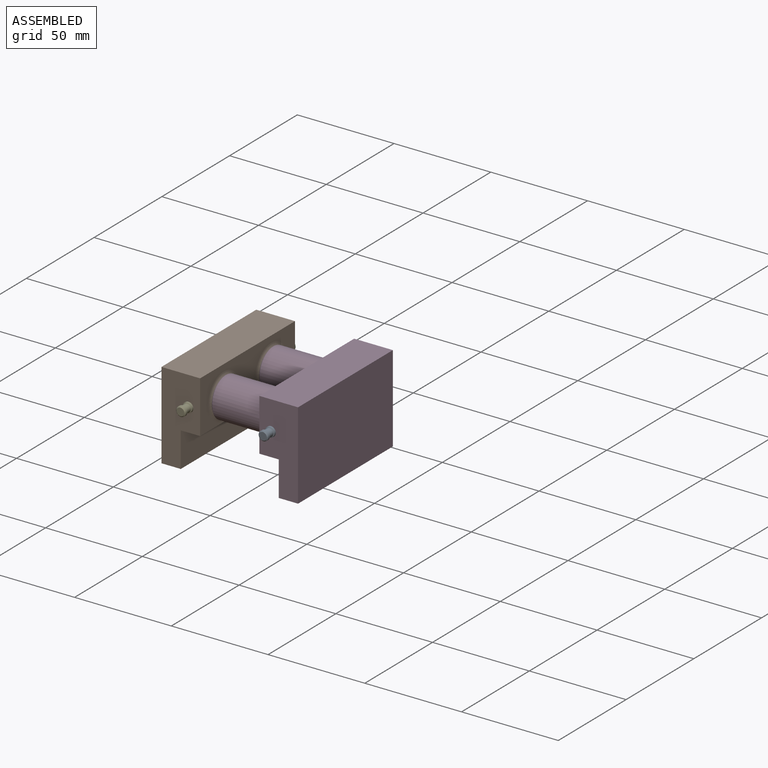
[diagram: assembled view]
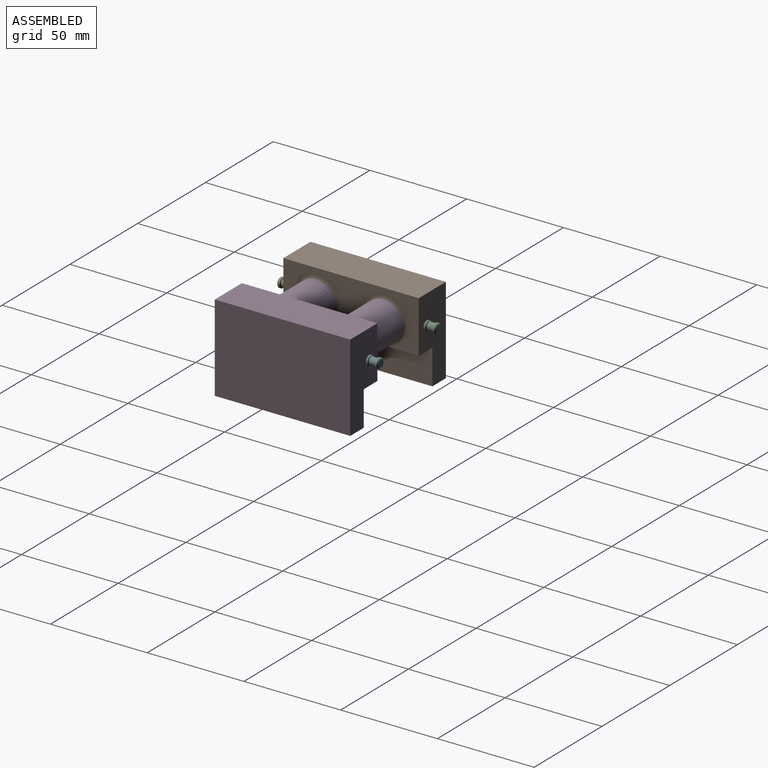
[diagram: assembled view, second angle]
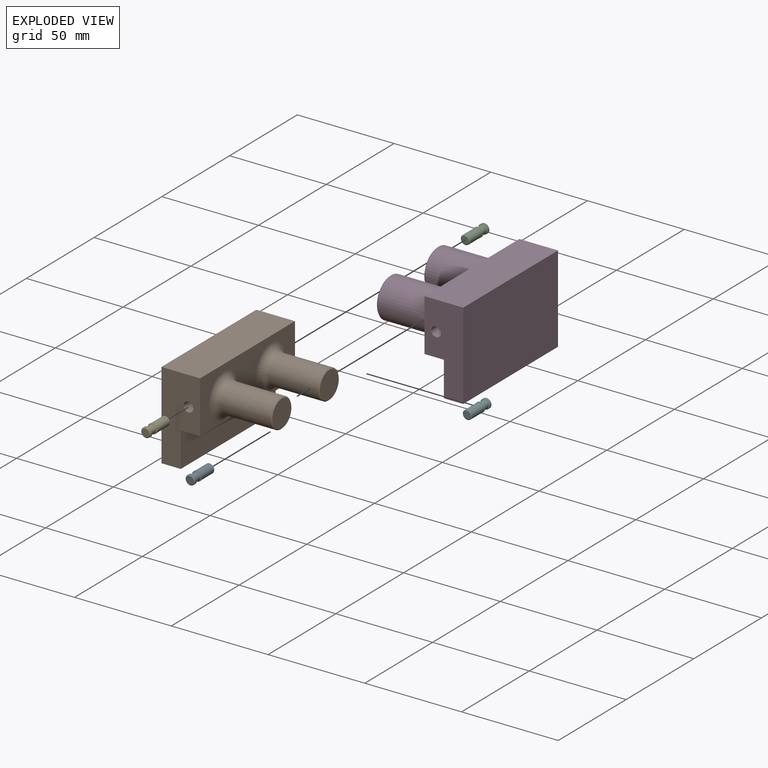
[diagram: exploded view]
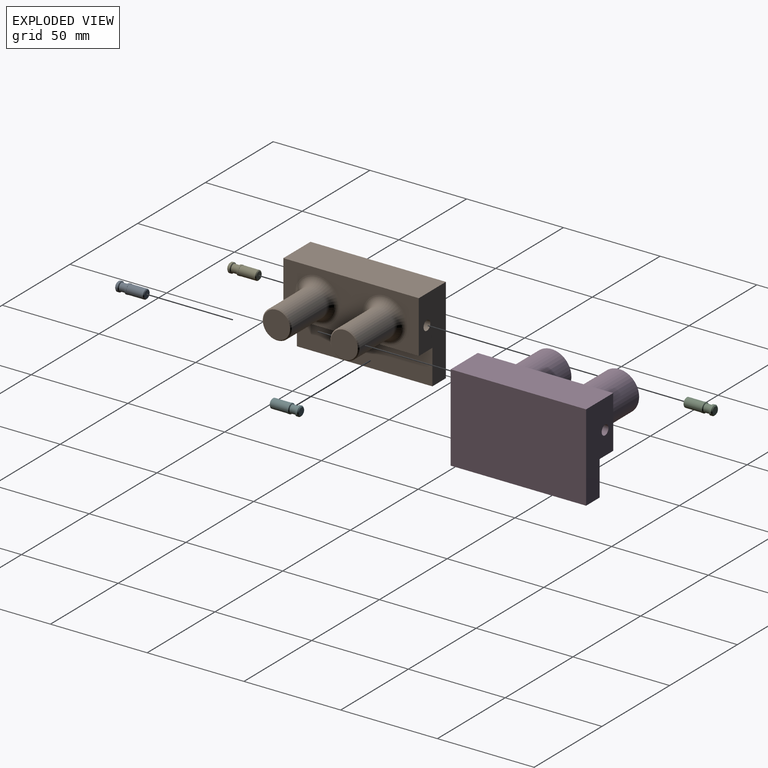
[diagram: exploded view, second angle]
ASSEMBLY  parts=6 mates=4
PART A: 11 faces, bbox 5x5x15 mm
  f0: cylinder r=2.5mm len=5mm, axis (0,0,-1), area 17.3mm2, adj f2,f5
  f1: plane 4x4mm, normal (0,0,-1), area 12.6mm2, adj f2
  f2: cone r=2.5mm half-angle=45deg, axis (0,0,1), area 10mm2, adj f0,f1
  f3: cone r=2.5mm half-angle=60deg, axis (0,0,1), area 8.2mm2, adj f4,f6
  f4: cylinder r=2mm len=4mm, axis (0,0,1), area 36.7mm2, adj f3,f5
  f5: cone r=2mm half-angle=60deg, axis (0,0,-1), area 8.2mm2, adj f0,f4
  f6: cylinder r=2.5mm len=5mm, axis (0,0,-1), area 14.1mm2, adj f3,f8
  f7: cylinder r=2.4mm len=8.6mm, axis (0,0,1), area 129.7mm2, adj f8,f10
  f8: plane 5x5mm, normal (0,0,1), area 1.5mm2, adj f6,f7
  f9: plane 4x4mm, normal (0,0,1), area 12.6mm2, adj f10
  f10: cone r=2mm half-angle=45deg, axis (0,0,-1), area 7.8mm2, adj f7,f9
PART B: 17 faces, bbox 45.5x70x50 mm
  f0: plane 70x10mm, normal (1,0,0), area 700mm2, adj f2,f4,f5,f9
  f1: plane 70x27mm, normal (0,0,1), area 1059mm2, adj f2,f3,f4,f8,f15,f16
  f2: plane 45x20mm, normal (0,1,0), area 700.4mm2, adj f0,f1,f3,f5,f8,f9,f14
  f3: plane 70x20mm, normal (-1,0,0), area 1400mm2, adj f1,f2,f4,f5
  f4: plane 45x20mm, normal (0,-1,0), area 700.4mm2, adj f0,f1,f3,f5,f8,f9,f14
  f5: plane 70x45mm, normal (0,0,-1), area 3150mm2, adj f0,f2,f3,f4
  f6: cylinder r=7.5mm len=25.5mm, axis (0,0,-1), area 1201.7mm2, adj f12,f16
  f7: cylinder r=7.5mm len=25.5mm, axis (0,0,-1), area 1201.7mm2, adj f13,f15
  f8: plane 70x10mm, normal (1,0,0), area 700mm2, adj f1,f2,f4,f9
  f9: plane 70x18mm, normal (0,0,1), area 1260mm2, adj f0,f2,f4,f8
  f10: plane 14x14mm, normal (0,0,1), area 153.9mm2, adj f12
  f11: plane 14x14mm, normal (0,0,1), area 153.9mm2, adj f13
  f12: cone r=7mm half-angle=45deg, axis (0,0,-1), area 32.2mm2, adj f6,f10
  f13: cone r=7mm half-angle=45deg, axis (0,0,-1), area 32.2mm2, adj f7,f11
  f14: cylinder r=2.5mm len=70mm, axis (0,-1,0), area 1099.6mm2, adj f2,f4
  f15: torus R=11.5mm, axis (0,0,1), area 353.5mm2, adj f1,f7
  f16: torus R=11.5mm, axis (0,0,1), area 353.5mm2, adj f1,f6
PART C: same geometry as A
PART D: 26 faces, bbox 48.8x72.3x50.3 mm
  f0: plane 70x10mm, normal (1,0,0), area 700mm2, adj f3,f4,f5,f9
  f1: plane 70x27mm, normal (0,0,1), area 661mm2, adj f2,f3,f4,f8,f22,f24
  f2: plane 70x20mm, normal (-1,0,0), area 1400mm2, adj f1,f3,f4,f5
  f3: plane 45x20mm, normal (0,-1,0), area 700.4mm2, adj f0,f1,f2,f5,f8,f9,f21
  f4: plane 45x20mm, normal (0,1,0), area 700.4mm2, adj f0,f1,f2,f5,f8,f9,f20
  f5: plane 70x45mm, normal (0,0,-1), area 3150mm2, adj f0,f2,f3,f4
  f6: cylinder r=10.25mm len=25.5mm, axis (0,0,-1), area 1642.3mm2, adj f16,f24,f25
  f7: cylinder r=10.25mm len=25.5mm, axis (0,0,-1), area 1642.3mm2, adj f14,f22,f23
  f8: plane 70.34x10.34mm, normal (1,0,0), area 700mm2, adj f1,f3,f4,f9,f23,f25
  f9: plane 70x18mm, normal (0,0,1), area 1260mm2, adj f0,f3,f4,f8
  f10: plane 19.5x19.5mm, normal (0,0,1), area 84.8mm2, adj f15,f16
  f11: cylinder r=7.75mm len=39.5mm, axis (0,0,-1), area 1883.7mm2, adj f15,f18,f19,f21
  f12: plane 19.5x19.5mm, normal (0,0,1), area 110mm2, adj f13,f14
  f13: cylinder r=7.75mm len=40mm, axis (0,0,-1), area 1908mm2, adj f12,f17,f19,f20
  f14: cone r=9.75mm half-angle=45deg, axis (0,0,-1), area 44.4mm2, adj f7,f12
  f15: cone r=7.75mm half-angle=45deg, axis (0,0,1), area 35.5mm2, adj f10,f11
  f16: cone r=9.75mm half-angle=45deg, axis (0,0,-1), area 44.4mm2, adj f6,f10
  f17: plane 15.5x15.5mm, normal (0,0,1), area 188.7mm2, adj f13
  f18: plane 15.5x15.5mm, normal (0,0,1), area 188.7mm2, adj f11
  f19: cylinder r=2.5mm len=19.5mm, axis (0,-1,0), area 306.3mm2, adj f11,f13
  f20: cylinder r=2.5mm len=9.75mm, axis (0,-1,0), area 153.2mm2, adj f4,f13
  f21: cylinder r=2.5mm len=9.75mm, axis (0,-1,0), area 153.2mm2, adj f3,f11
  f22: torus R=14.25mm, axis (0,0,1), area 378.3mm2, adj f1,f7,f23
  f23: bspline ~16.29x4.26mm, area 59.7mm2, adj f7,f8,f22
  f24: torus R=14.25mm, axis (0,0,1), area 378.3mm2, adj f1,f6,f25
  f25: bspline ~16.29x4.26mm, area 59.7mm2, adj f6,f8,f24
PART E: same geometry as A
PART F: same geometry as A
PLACE A rot(axis=(-0.58,-0.58,-0.58),120deg) t=(186.86,-27.98,32.76)mm
PLACE B rot(axis=(0,1,0),90deg) t=(55.26,13.02,17.76)mm fixed
PLACE C rot(axis=(0.58,-0.58,0.58),120deg) t=(-5.74,54.02,32.76)mm
PLACE D rot(axis=(0.71,0,-0.71),180deg) t=(125.86,118.89,17.76)mm
PLACE E rot(axis=(0,-0.71,-0.71),180deg) t=(61.76,-27.98,100.26)mm
PLACE F rot(axis=(1,0,0),90deg) t=(119.36,54.02,100.26)mm
MATE revolute A.f0 <-> D.f19  axis (0,1,0) through (111.86,-21.98,25.26)mm
MATE revolute C.f0 <-> B.f14  axis (0,-1,0) through (69.26,48.02,25.26)mm
MATE revolute B.f14 <-> E.f0  axis (0,-1,0) through (69.26,-21.98,25.26)mm
MATE revolute D.f19 <-> F.f0  axis (0,1,0) through (111.86,48.02,25.26)mm
